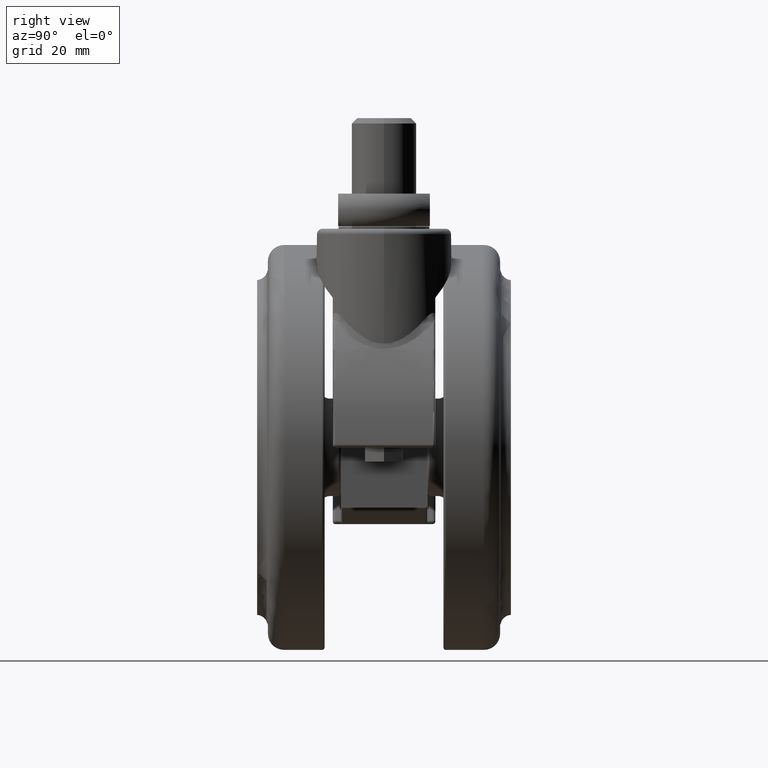
[diagram: clean part render]
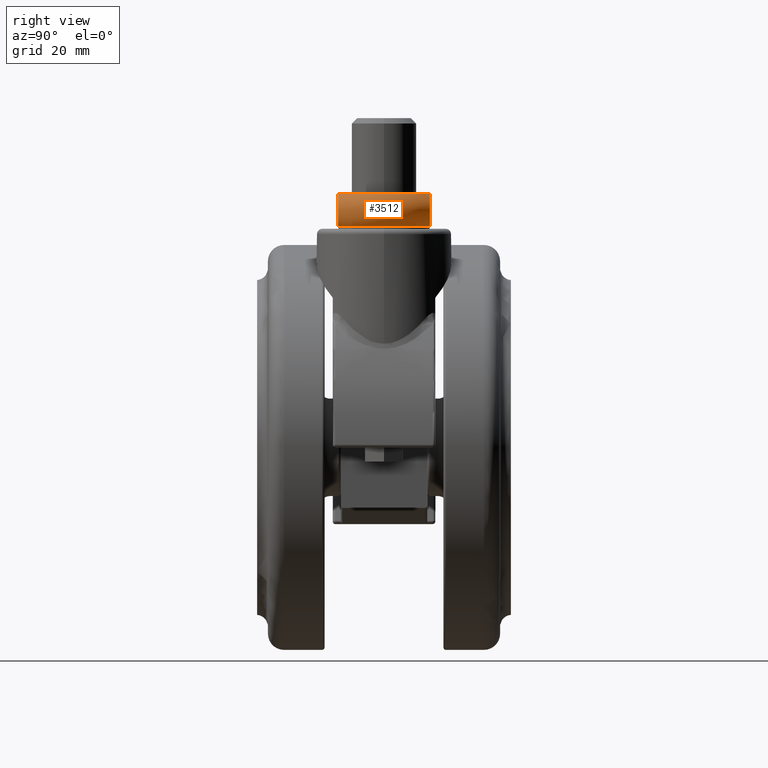
[diagram: same view with one face highlighted and labeled with its STEP entity id]
A machine part, right view. The second image highlights one B-rep face of the part: STEP entity #3512.
In plain terms, the highlighted toroidal blend (fillet) surface has major radius 6.3542 mm and minor (blend) radius 4 mm.
Its self-contained STEP definition (entity closure, byte-faithful):
#137 = VERTEX_POINT ( 'NONE', #183 ) ;
#183 = CARTESIAN_POINT ( 'NONE',  ( 2.958037795423370300, 8.500000000000000000, 0.4999999999998860400 ) ) ;
#356 = DIRECTION ( 'NONE',  ( -1.000000000000000000, 0.0000000000000000000, 0.0000000000000000000 ) ) ;
#485 = CARTESIAN_POINT ( 'NONE',  ( 4.178392909131842400, -8.499999999999913000, 0.9894773039334104900 ) ) ;
#493 = CARTESIAN_POINT ( 'NONE',  ( 5.087615524475501700, 8.499999999999998200, 5.346348415099307700 ) ) ;
#500 = AXIS2_PLACEMENT_3D ( 'NONE', #5399, #1328, #6081 ) ;
#508 = CARTESIAN_POINT ( 'NONE',  ( 5.889184996736498900, -8.499999999999911200, 3.876710087050886600 ) ) ;
#524 = CARTESIAN_POINT ( 'NONE',  ( 5.452985533873556900, 8.500000000000000000, 2.082928216990122200 ) ) ;
#542 = CARTESIAN_POINT ( 'NONE',  ( 2.958037778009625200, -8.499999999999911200, 6.500000005047589900 ) ) ;
#596 = CARTESIAN_POINT ( 'NONE',  ( 0.0000000000000000000, 0.0000000000000000000, 0.4999999999998860400 ) ) ;
#694 = DIRECTION ( 'NONE',  ( -1.000000000000000000, 0.0000000000000000000, 0.0000000000000000000 ) ) ;
#736 = CARTESIAN_POINT ( 'NONE',  ( 2.958037778009130000, 8.500000000000000000, 6.499999999999619900 ) ) ;
#1170 = CARTESIAN_POINT ( 'NONE',  ( 4.657942724861418200, -8.499999999999909400, 1.291323069595781100 ) ) ;
#1186 = CARTESIAN_POINT ( 'NONE',  ( 5.455471081818611600, 8.500000000000001800, 4.913523281061844500 ) ) ;
#1204 = CARTESIAN_POINT ( 'NONE',  ( 5.729450753716800000, -8.499999999999909400, 4.422010101522777100 ) ) ;
#1213 = CARTESIAN_POINT ( 'NONE',  ( 5.086282115518916800, 8.499999999999998200, 1.652321554459616100 ) ) ;
#1328 = DIRECTION ( 'NONE',  ( 0.0000000000000000000, 0.0000000000000000000, -1.000000000000000000 ) ) ;
#1559 = EDGE_CURVE ( 'NONE', #137, #7152, #6710, .T. ) ;
#1853 = CARTESIAN_POINT ( 'NONE',  ( 5.087615537005448600, -8.499999999999911200, 1.653651597249346400 ) ) ;
#1863 = CARTESIAN_POINT ( 'NONE',  ( 5.730016949556382900, 8.500000000000001800, 4.420678286463249200 ) ) ;
#1878 = CARTESIAN_POINT ( 'NONE',  ( 5.452985523429581400, -8.499999999999909400, 4.917071797860044700 ) ) ;
#1890 = CARTESIAN_POINT ( 'NONE',  ( 4.654018167417305600, 8.500000000000000000, 1.288449243163168700 ) ) ;
#1980 = B_SPLINE_CURVE_WITH_KNOTS ( 'NONE', 3,
 ( #6583, #4504, #3217, #7901, #3892, #8588, #4558, #493, #5254, #1186, #5932, #1863, #6615, #2555, #7255, #3242, #7938, #3917, #8607, #4593, #524, #5282, #1213, #5968, #1890, #6637, #2587, #7288, #3265, #7962 ),
 .UNSPECIFIED., .F., .F.,
 ( 4, 2, 2, 2, 2, 2, 2, 2, 2, 2, 2, 2, 2, 2, 4 ),
 ( 0.002981804275303441700, 0.004101889952622809700, 0.004661932791282491500, 0.005221975629942175000, 0.005782018468601857700, 0.006342061307261540400, 0.006902104145921223100, 0.007462146984580905800, 0.008022189823240589300, 0.008582232661900272800, 0.009142275500559954700, 0.009702318339219636500, 0.01026236117787932000, 0.01082240401653900400, 0.01194248969385836700 ),
 .UNSPECIFIED. ) ;
#2537 = CARTESIAN_POINT ( 'NONE',  ( 5.455471091931359600, -8.499999999999911200, 2.086476733389500900 ) ) ;
#2555 = CARTESIAN_POINT ( 'NONE',  ( 5.888955475670685200, 8.500000000000001800, 3.877550157011580000 ) ) ;
#2577 = CARTESIAN_POINT ( 'NONE',  ( 5.086282102795177500, -8.499999999999911200, 5.347678458073753300 ) ) ;
#2587 = CARTESIAN_POINT ( 'NONE',  ( 4.175340631051169800, 8.500000000000000000, 0.9878538016054926300 ) ) ;
#2868 = TOROIDAL_SURFACE ( 'NONE', #3558, 6.354247999999529400, 4.000000000000000000 ) ;
#2978 = DIRECTION ( 'NONE',  ( 0.0000000000000000000, 0.0000000000000000000, -1.000000000000000000 ) ) ;
#3217 = CARTESIAN_POINT ( 'NONE',  ( 3.673593525293934000, 8.500000000000000000, 6.263219108169482600 ) ) ;
#3234 = CARTESIAN_POINT ( 'NONE',  ( 5.730016956536734300, -8.499999999999909400, 2.579321729980843500 ) ) ;
#3242 = CARTESIAN_POINT ( 'NONE',  ( 5.912795228058486800, 8.499999999999998200, 3.309946801378274500 ) ) ;
#3253 = CARTESIAN_POINT ( 'NONE',  ( 4.654018152695882400, -8.499999999999911200, 5.711550767475449300 ) ) ;
#3265 = CARTESIAN_POINT ( 'NONE',  ( 3.320021988970906200, 8.500000000000000000, 0.6049249122883644200 ) ) ;
#3311 = CIRCLE ( 'NONE', #500, 8.999999305340569600 ) ;
#3314 = VERTEX_POINT ( 'NONE', #736 ) ;
#3460 = B_SPLINE_CURVE_WITH_KNOTS ( 'NONE', 3,
 ( #6570, #3858, #4544, #485, #5241, #1170, #5921, #1853, #6604, #2537, #7249, #3234, #7920, #3905, #8601, #4582, #508, #5270, #1204, #5950, #1878, #6629, #2577, #7272, #3253, #7952, #3936, #8620, #4605, #542 ),
 .UNSPECIFIED., .F., .F.,
 ( 4, 2, 2, 2, 2, 2, 2, 2, 2, 2, 2, 2, 2, 2, 4 ),
 ( 0.002981804292575575500, 0.004101889969981128500, 0.004661932808683906900, 0.005221975647386685300, 0.005782018486089463700, 0.006342061324792241200, 0.006902104163495020500, 0.007462147002197799800, 0.008022189840900577400, 0.008582232679603353200, 0.009142275518306130700, 0.009702318357008906500, 0.01026236119571168400, 0.01082240403441446200, 0.01194248971182001500 ),
 .UNSPECIFIED. ) ;
#3512 = ADVANCED_FACE ( 'NONE', ( #4988 ), #2868, .T. ) ;
#3558 = AXIS2_PLACEMENT_3D ( 'NONE', #7774, #3757, #356 ) ;
#3757 = DIRECTION ( 'NONE',  ( 0.0000000000000000000, 0.0000000000000000000, -1.000000000000000000 ) ) ;
#3858 = CARTESIAN_POINT ( 'NONE',  ( 3.320938102547085400, -8.499999999999911200, 0.6051904574097518600 ) ) ;
#3892 = CARTESIAN_POINT ( 'NONE',  ( 4.343626260170866600, 8.500000000000000000, 5.916271516682070500 ) ) ;
#3905 = CARTESIAN_POINT ( 'NONE',  ( 5.888955478571253900, -8.499999999999914700, 3.122449860385664500 ) ) ;
#3917 = CARTESIAN_POINT ( 'NONE',  ( 5.797988719368769100, 8.499999999999998200, 2.757597707165630100 ) ) ;
#3936 = CARTESIAN_POINT ( 'NONE',  ( 4.175340615314586200, -8.499999999999909400, 6.012146206982778900 ) ) ;
#4355 = ORIENTED_EDGE ( 'NONE', *, *, #8691, .T. ) ;
#4493 = VERTEX_POINT ( 'NONE', #5547 ) ;
#4504 = CARTESIAN_POINT ( 'NONE',  ( 3.320938085845487600, 8.500000000000001800, 6.394809548353588700 ) ) ;
#4544 = CARTESIAN_POINT ( 'NONE',  ( 3.673593541409682300, -8.499999999999913000, 0.7367808984819816900 ) ) ;
#4558 = CARTESIAN_POINT ( 'NONE',  ( 4.807307584990602400, 8.500000000000000000, 5.595383250814829300 ) ) ;
#4582 = CARTESIAN_POINT ( 'NONE',  ( 5.912795226560745300, -8.499999999999914700, 3.690053216377045900 ) ) ;
#4593 = CARTESIAN_POINT ( 'NONE',  ( 5.557687540133533100, 8.499999999999998200, 2.242457750426408000 ) ) ;
#4605 = CARTESIAN_POINT ( 'NONE',  ( 3.320021971708802900, -8.499999999999914700, 6.395075093669568400 ) ) ;
#4614 = EDGE_CURVE ( 'NONE', #7152, #4493, #3460, .T. ) ;
#4988 = FACE_OUTER_BOUND ( 'NONE', #6808, .T. ) ;
#5241 = CARTESIAN_POINT ( 'NONE',  ( 4.343626275295807000, -8.499999999999911200, 1.083728492390897600 ) ) ;
#5254 = CARTESIAN_POINT ( 'NONE',  ( 5.219615902485154300, 8.500000000000000000, 5.209341412657303200 ) ) ;
#5270 = CARTESIAN_POINT ( 'NONE',  ( 5.797988713651877300, -8.499999999999909400, 4.242402309902502100 ) ) ;
#5282 = CARTESIAN_POINT ( 'NONE',  ( 5.216645008362958100, 8.500000000000000000, 1.787373500442042400 ) ) ;
#5399 = CARTESIAN_POINT ( 'NONE',  ( 0.0000000000000000000, 0.0000000000000000000, 6.500000005047589900 ) ) ;
#5547 = CARTESIAN_POINT ( 'NONE',  ( 2.958037778009625200, -8.499999999999911200, 6.500000005047589900 ) ) ;
#5921 = CARTESIAN_POINT ( 'NONE',  ( 4.807307598654202400, -8.499999999999911200, 1.404616760106990800 ) ) ;
#5932 = CARTESIAN_POINT ( 'NONE',  ( 5.558422460940740900, 8.500000000000000000, 4.756330681194567600 ) ) ;
#5950 = CARTESIAN_POINT ( 'NONE',  ( 5.557687530852573900, -8.499999999999909400, 4.757542264890072500 ) ) ;
#5968 = CARTESIAN_POINT ( 'NONE',  ( 4.805496139090631200, 8.500000000000001800, 1.403154424781456700 ) ) ;
#6081 = DIRECTION ( 'NONE',  ( -1.000000000000000000, 0.0000000000000000000, 0.0000000000000000000 ) ) ;
#6570 = CARTESIAN_POINT ( 'NONE',  ( 2.958037795423865000, -8.499999999999911200, 0.4999999999998860400 ) ) ;
#6583 = CARTESIAN_POINT ( 'NONE',  ( 2.958037778009130000, 8.500000000000000000, 6.499999999999619900 ) ) ;
#6604 = CARTESIAN_POINT ( 'NONE',  ( 5.219615914466479500, -8.499999999999911200, 1.790658600601723500 ) ) ;
#6615 = CARTESIAN_POINT ( 'NONE',  ( 5.798337116546774100, 8.500000000000000000, 4.241085424907466500 ) ) ;
#6629 = CARTESIAN_POINT ( 'NONE',  ( 5.216644996340764200, -8.499999999999909400, 5.212626512802666300 ) ) ;
#6637 = CARTESIAN_POINT ( 'NONE',  ( 4.338424151249735200, 8.500000000000000000, 1.080582752719712500 ) ) ;
#6710 = CIRCLE ( 'NONE', #8334, 8.999999999999550600 ) ;
#6808 = EDGE_LOOP ( 'NONE', ( #7625, #4355, #8543, #8277 ) ) ;
#7152 = VERTEX_POINT ( 'NONE', #8646 ) ;
#7249 = CARTESIAN_POINT ( 'NONE',  ( 5.558422470074428500, -8.499999999999913000, 2.243669333880693000 ) ) ;
#7255 = CARTESIAN_POINT ( 'NONE',  ( 5.912677338556869200, 8.500000000000000000, 3.691464825764651200 ) ) ;
#7272 = CARTESIAN_POINT ( 'NONE',  ( 4.805496125058422100, -8.499999999999911200, 5.596845586427992500 ) ) ;
#7288 = CARTESIAN_POINT ( 'NONE',  ( 3.673279935559310000, 8.500000000000000000, 0.7368168943553163900 ) ) ;
#7625 = ORIENTED_EDGE ( 'NONE', *, *, #7662, .F. ) ;
#7662 = EDGE_CURVE ( 'NONE', #3314, #137, #1980, .T. ) ;
#7774 = CARTESIAN_POINT ( 'NONE',  ( 0.0000000000000000000, 0.0000000000000000000, 3.499999999999885000 ) ) ;
#7901 = CARTESIAN_POINT ( 'NONE',  ( 4.178392893720611000, 8.499999999999998200, 6.010522704488717900 ) ) ;
#7920 = CARTESIAN_POINT ( 'NONE',  ( 5.798337122176991300, -8.499999999999911200, 2.758914591916869200 ) ) ;
#7938 = CARTESIAN_POINT ( 'NONE',  ( 5.889184999646361400, 8.500000000000000000, 3.123289930474376400 ) ) ;
#7952 = CARTESIAN_POINT ( 'NONE',  ( 4.338424135825536400, -8.499999999999907600, 5.919417256496898500 ) ) ;
#7962 = CARTESIAN_POINT ( 'NONE',  ( 2.958037795423370300, 8.500000000000000000, 0.4999999999998860400 ) ) ;
#8277 = ORIENTED_EDGE ( 'NONE', *, *, #1559, .F. ) ;
#8334 = AXIS2_PLACEMENT_3D ( 'NONE', #596, #2978, #694 ) ;
#8543 = ORIENTED_EDGE ( 'NONE', *, *, #4614, .F. ) ;
#8588 = CARTESIAN_POINT ( 'NONE',  ( 4.657942710687452200, 8.500000000000001800, 5.708676940681424000 ) ) ;
#8601 = CARTESIAN_POINT ( 'NONE',  ( 5.912677340065991800, -8.499999999999911200, 3.308535192482435300 ) ) ;
#8607 = CARTESIAN_POINT ( 'NONE',  ( 5.729450760723698200, 8.500000000000000000, 2.577989914978450400 ) ) ;
#8620 = CARTESIAN_POINT ( 'NONE',  ( 3.673279918959588800, -8.499999999999913000, 6.263183112504813200 ) ) ;
#8646 = CARTESIAN_POINT ( 'NONE',  ( 2.958037795423865000, -8.499999999999911200, 0.4999999999998860400 ) ) ;
#8691 = EDGE_CURVE ( 'NONE', #3314, #4493, #3311, .T. ) ;